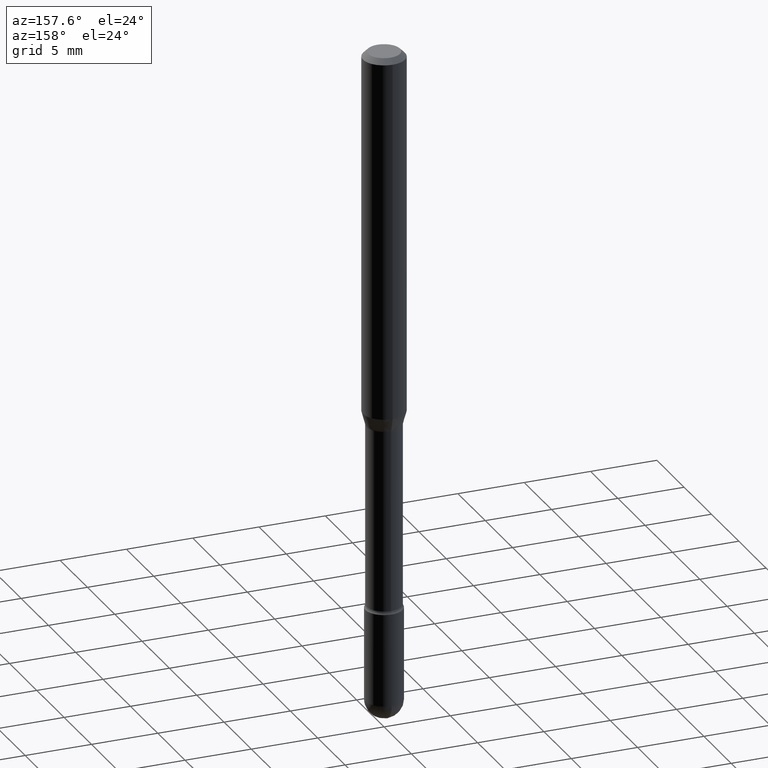
[diagram: clean part render]
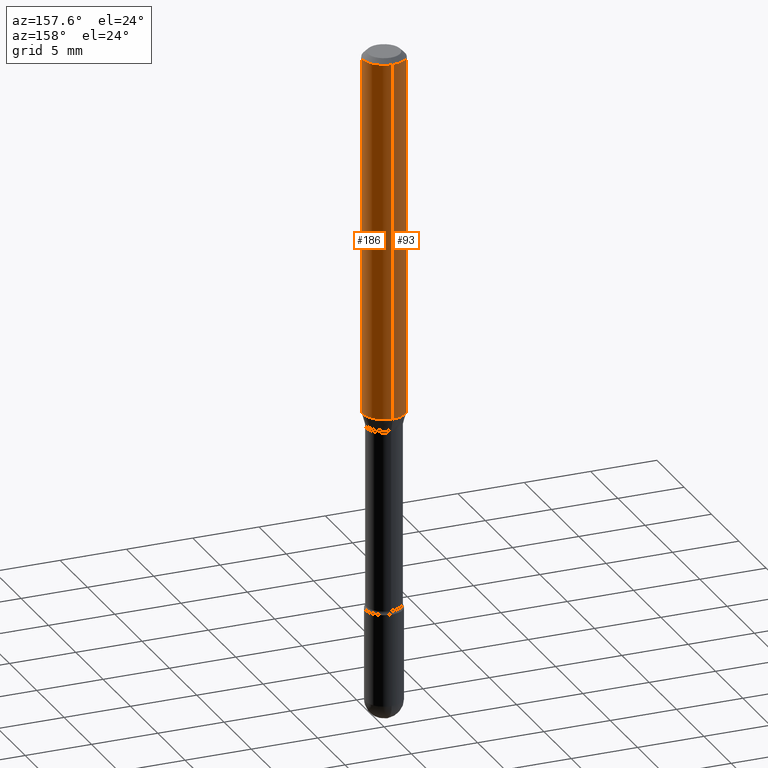
[diagram: same view with one multi-face feature highlighted, each face labeled with its STEP entity id]
A machine part, auxiliary view. The highlighted faces form ONE feature: a constant-radius fillet chain: 2 tangent blend faces with common blend radius 1.5875 mm. The faces share edges in the B-rep.
Their STEP definitions:
[1] entity #93 (Cylinder):
#14 = EDGE_CURVE ( 'NONE', #341, #46, #295, .T. ) ;
#15 = DIRECTION ( 'NONE',  ( -6.982962677686265922E-15, -1.000000000000000000, 4.370956789862821150E-15 ) ) ;
#19 = CARTESIAN_POINT ( 'NONE',  ( 4.440892098500888458E-16, 0.06249999999999621830, -1.079693851278256123 ) ) ;
#21 = VECTOR ( 'NONE', #528, 39.37007874015748143 ) ;
#33 = CARTESIAN_POINT ( 'NONE',  ( -4.364351673553912750E-16, -0.06250000000000005551, -0.01499999999999986587 ) ) ;
#37 = EDGE_CURVE ( 'NONE', #272, #46, #357, .T. ) ;
#40 = CYLINDRICAL_SURFACE ( 'NONE', #220, 0.06250000000000000000 ) ;
#43 = VECTOR ( 'NONE', #352, 39.37007874015748143 ) ;
#46 = VERTEX_POINT ( 'NONE', #33 ) ;
#93 = ADVANCED_FACE ( 'NONE', ( #176 ), #40, .T. ) ;
#99 = EDGE_CURVE ( 'NONE', #200, #341, #219, .T. ) ;
#100 = CARTESIAN_POINT ( 'NONE',  ( 2.640297520581989546E-29, -3.769817018565928118E-15, -1.079693851278255678 ) ) ;
#109 = ORIENTED_EDGE ( 'NONE', *, *, #14, .F. ) ;
#132 = ORIENTED_EDGE ( 'NONE', *, *, #37, .T. ) ;
#135 = DIRECTION ( 'NONE',  ( -6.982962677686265922E-15, -1.000000000000000000, 3.483106191921935554E-15 ) ) ;
#139 = ORIENTED_EDGE ( 'NONE', *, *, #535, .T. ) ;
#175 = AXIS2_PLACEMENT_3D ( 'NONE', #100, #234, #15 ) ;
#176 = FACE_OUTER_BOUND ( 'NONE', #344, .T. ) ;
#200 = VERTEX_POINT ( 'NONE', #19 ) ;
#209 = CIRCLE ( 'NONE', #175, 0.06250000000000000000 ) ;
#219 = LINE ( 'NONE', #565, #43 ) ;
#220 = AXIS2_PLACEMENT_3D ( 'NONE', #312, #263, #432 ) ;
#224 = DIRECTION ( 'NONE',  ( -2.445413130264774558E-29, 3.491561069929980790E-15, 1.000000000000000000 ) ) ;
#234 = DIRECTION ( 'NONE',  ( -2.445413130264774558E-29, 3.491561069929980790E-15, 1.000000000000000000 ) ) ;
#263 = DIRECTION ( 'NONE',  ( -2.445413130264774558E-29, 3.491561069929980790E-15, 1.000000000000000000 ) ) ;
#272 = VERTEX_POINT ( 'NONE', #375 ) ;
#287 = AXIS2_PLACEMENT_3D ( 'NONE', #388, #224, #135 ) ;
#295 = CIRCLE ( 'NONE', #287, 0.06250000000000000000 ) ;
#312 = CARTESIAN_POINT ( 'NONE',  ( -1.169113584055446105E-44, 1.669184350826100908E-30, 4.780733988912460139E-16 ) ) ;
#341 = VERTEX_POINT ( 'NONE', #521 ) ;
#344 = EDGE_LOOP ( 'NONE', ( #457, #139, #132, #109 ) ) ;
#352 = DIRECTION ( 'NONE',  ( -2.445413130264774839E-29, 3.491561069929980396E-15, 1.000000000000000000 ) ) ;
#357 = LINE ( 'NONE', #480, #21 ) ;
#375 = CARTESIAN_POINT ( 'NONE',  ( -4.364351673553652919E-16, -0.06250000000000377476, -1.079693851278255456 ) ) ;
#388 = CARTESIAN_POINT ( 'NONE',  ( 3.668119695397181911E-31, -5.237341604894999979E-17, -0.01500000000000008271 ) ) ;
#432 = DIRECTION ( 'NONE',  ( -6.982962677686265922E-15, -1.000000000000000000, 3.491561069929980396E-15 ) ) ;
#457 = ORIENTED_EDGE ( 'NONE', *, *, #99, .F. ) ;
#480 = CARTESIAN_POINT ( 'NONE',  ( -4.364351673553916201E-16, -0.06250000000000000000, 6.962959657618698626E-16 ) ) ;
#521 = CARTESIAN_POINT ( 'NONE',  ( 4.440892098500891416E-16, 0.06249999999999995143, -0.01500000000000030129 ) ) ;
#528 = DIRECTION ( 'NONE',  ( -2.445413130264774839E-29, 3.491561069929980396E-15, 1.000000000000000000 ) ) ;
#535 = EDGE_CURVE ( 'NONE', #200, #272, #209, .T. ) ;
#565 = CARTESIAN_POINT ( 'NONE',  ( 4.440892098500625669E-16, 0.06250000000000000000, 2.598508320206222638E-16 ) ) ;
[2] entity #186 (Cylinder):
#19 = CARTESIAN_POINT ( 'NONE',  ( 4.440892098500888458E-16, 0.06249999999999621830, -1.079693851278256123 ) ) ;
#21 = VECTOR ( 'NONE', #528, 39.37007874015748143 ) ;
#33 = CARTESIAN_POINT ( 'NONE',  ( -4.364351673553912750E-16, -0.06250000000000005551, -0.01499999999999986587 ) ) ;
#37 = EDGE_CURVE ( 'NONE', #272, #46, #357, .T. ) ;
#43 = VECTOR ( 'NONE', #352, 39.37007874015748143 ) ;
#46 = VERTEX_POINT ( 'NONE', #33 ) ;
#57 = AXIS2_PLACEMENT_3D ( 'NONE', #389, #260, #476 ) ;
#99 = EDGE_CURVE ( 'NONE', #200, #341, #219, .T. ) ;
#128 = ORIENTED_EDGE ( 'NONE', *, *, #216, .F. ) ;
#150 = CIRCLE ( 'NONE', #279, 0.06250000000000000000 ) ;
#155 = FACE_OUTER_BOUND ( 'NONE', #383, .T. ) ;
#165 = ORIENTED_EDGE ( 'NONE', *, *, #37, .F. ) ;
#186 = ADVANCED_FACE ( 'NONE', ( #155 ), #332, .T. ) ;
#189 = CIRCLE ( 'NONE', #57, 0.06250000000000000000 ) ;
#200 = VERTEX_POINT ( 'NONE', #19 ) ;
#216 = EDGE_CURVE ( 'NONE', #46, #341, #189, .T. ) ;
#219 = LINE ( 'NONE', #565, #43 ) ;
#240 = AXIS2_PLACEMENT_3D ( 'NONE', #497, #409, #286 ) ;
#260 = DIRECTION ( 'NONE',  ( -2.445413130264774558E-29, 3.491561069929980790E-15, 1.000000000000000000 ) ) ;
#270 = ORIENTED_EDGE ( 'NONE', *, *, #99, .T. ) ;
#271 = CARTESIAN_POINT ( 'NONE',  ( 2.640297520581989546E-29, -3.769817018565928118E-15, -1.079693851278255678 ) ) ;
#272 = VERTEX_POINT ( 'NONE', #375 ) ;
#279 = AXIS2_PLACEMENT_3D ( 'NONE', #271, #441, #483 ) ;
#286 = DIRECTION ( 'NONE',  ( -6.982962677686265922E-15, -1.000000000000000000, 3.491561069929980396E-15 ) ) ;
#291 = EDGE_CURVE ( 'NONE', #272, #200, #150, .T. ) ;
#302 = ORIENTED_EDGE ( 'NONE', *, *, #291, .T. ) ;
#332 = CYLINDRICAL_SURFACE ( 'NONE', #240, 0.06250000000000000000 ) ;
#341 = VERTEX_POINT ( 'NONE', #521 ) ;
#352 = DIRECTION ( 'NONE',  ( -2.445413130264774839E-29, 3.491561069929980396E-15, 1.000000000000000000 ) ) ;
#357 = LINE ( 'NONE', #480, #21 ) ;
#375 = CARTESIAN_POINT ( 'NONE',  ( -4.364351673553652919E-16, -0.06250000000000377476, -1.079693851278255456 ) ) ;
#383 = EDGE_LOOP ( 'NONE', ( #302, #270, #128, #165 ) ) ;
#389 = CARTESIAN_POINT ( 'NONE',  ( 3.668119695397181911E-31, -5.237341604894999979E-17, -0.01500000000000008271 ) ) ;
#409 = DIRECTION ( 'NONE',  ( -2.445413130264774558E-29, 3.491561069929980790E-15, 1.000000000000000000 ) ) ;
#441 = DIRECTION ( 'NONE',  ( -2.445413130264774558E-29, 3.491561069929980790E-15, 1.000000000000000000 ) ) ;
#476 = DIRECTION ( 'NONE',  ( -6.982962677686265922E-15, -1.000000000000000000, 3.483106191921935554E-15 ) ) ;
#480 = CARTESIAN_POINT ( 'NONE',  ( -4.364351673553916201E-16, -0.06250000000000000000, 6.962959657618698626E-16 ) ) ;
#483 = DIRECTION ( 'NONE',  ( -6.982962677686265922E-15, -1.000000000000000000, 4.370956789862821150E-15 ) ) ;
#497 = CARTESIAN_POINT ( 'NONE',  ( -1.169113584055446105E-44, 1.669184350826100908E-30, 4.780733988912460139E-16 ) ) ;
#521 = CARTESIAN_POINT ( 'NONE',  ( 4.440892098500891416E-16, 0.06249999999999995143, -0.01500000000000030129 ) ) ;
#528 = DIRECTION ( 'NONE',  ( -2.445413130264774839E-29, 3.491561069929980396E-15, 1.000000000000000000 ) ) ;
#565 = CARTESIAN_POINT ( 'NONE',  ( 4.440892098500625669E-16, 0.06250000000000000000, 2.598508320206222638E-16 ) ) ;